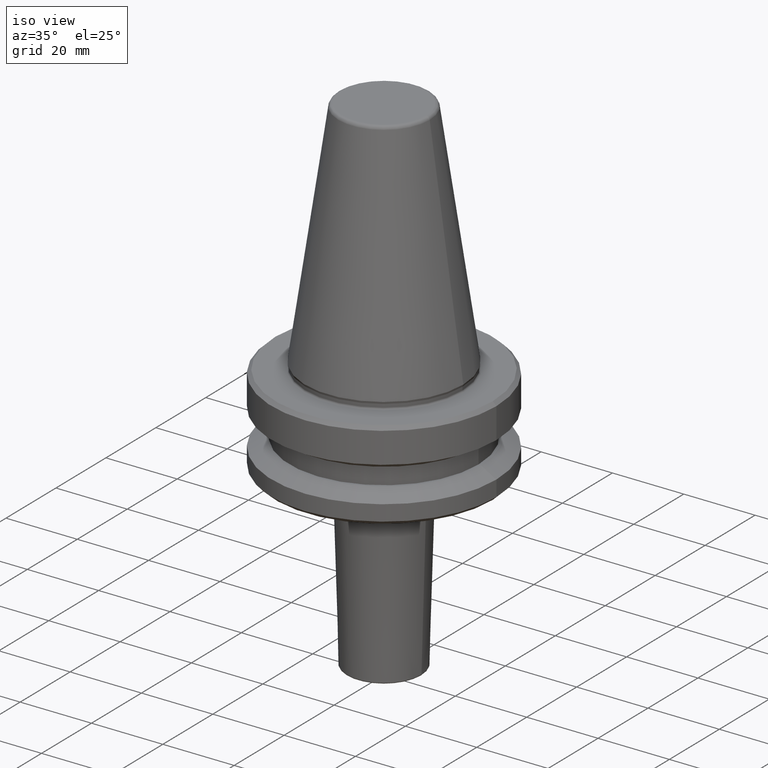
[diagram: clean part render]
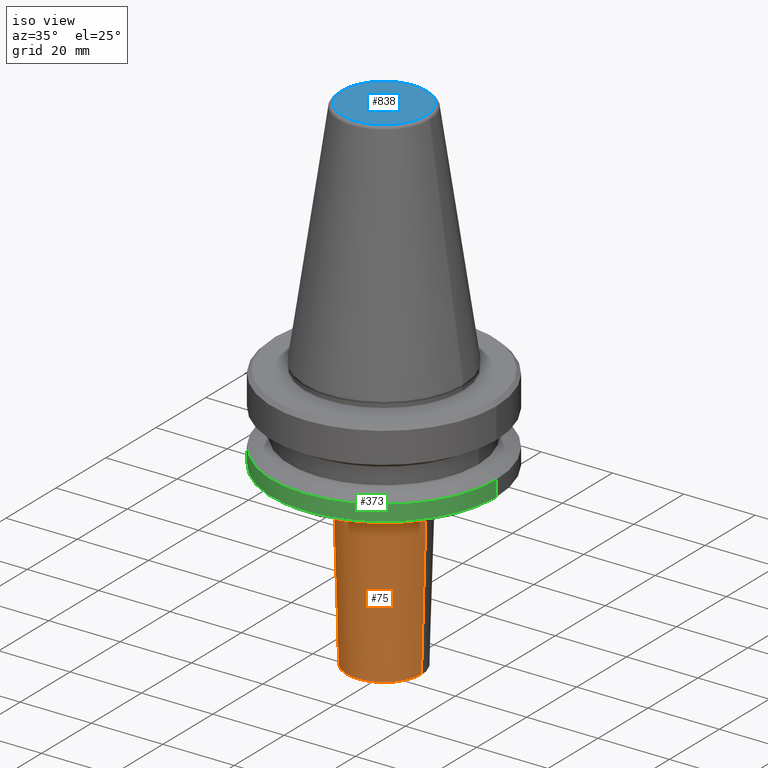
[diagram: same view with three faces highlighted in distinct colors, each labeled with its STEP entity id]
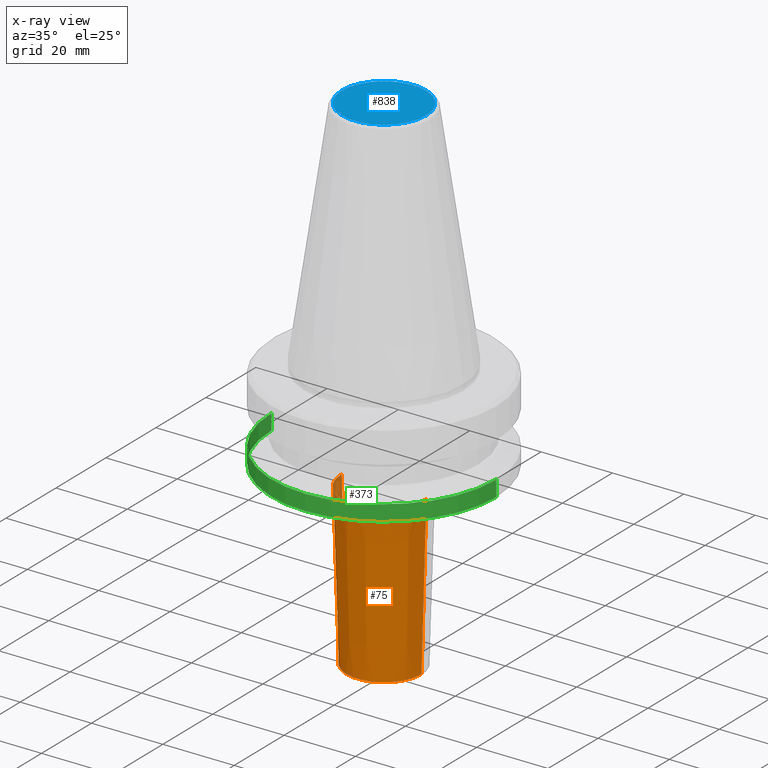
[diagram: x-ray of the same camera — body ghosted, the three highlighted faces saturated]
A machine part, iso view with three faces highlighted in distinct colors.
The next image is the same camera in x-ray (body ghosted, the three faces saturated) — at least one of them is partly hidden behind the body in this view.
Their STEP definitions:

[orange] entity #75 — the highlighted conical surface has half-angle 1.718 deg.
#2 = VERTEX_POINT ( 'NONE', #9 ) ;
#9 = CARTESIAN_POINT ( 'NONE',  ( -10.51455020236339500, 1.287661024979848700E-015, -141.9149932545611300 ) ) ;
#10 = FACE_OUTER_BOUND ( 'NONE', #734, .T. ) ;
#16 = LINE ( 'NONE', #767, #639 ) ;
#22 = DIRECTION ( 'NONE',  ( -0.0000000000000000000, -0.0000000000000000000, 1.000000000000000000 ) ) ;
#46 = AXIS2_PLACEMENT_3D ( 'NONE', #623, #219, #579 ) ;
#67 = ORIENTED_EDGE ( 'NONE', *, *, #913, .F. ) ;
#72 = CIRCLE ( 'NONE', #778, 11.85449797636584700 ) ;
#75 = ADVANCED_FACE ( 'NONE', ( #10 ), #396, .T. ) ;
#79 = DIRECTION ( 'NONE',  ( -0.0000000000000000000, -0.0000000000000000000, 1.000000000000000000 ) ) ;
#143 = DIRECTION ( 'NONE',  ( -0.02998650910567107400, 3.672288239386304100E-018, 0.9995503035223666200 ) ) ;
#219 = DIRECTION ( 'NONE',  ( -0.0000000000000000000, -0.0000000000000000000, 1.000000000000000000 ) ) ;
#252 = AXIS2_PLACEMENT_3D ( 'NONE', #946, #79, #700 ) ;
#295 = EDGE_CURVE ( 'NONE', #723, #410, #504, .T. ) ;
#313 = EDGE_CURVE ( 'NONE', #865, #410, #72, .T. ) ;
#396 = CONICAL_SURFACE ( 'NONE', #252, 11.85449797636584700, 0.02999100485687798000 ) ;
#410 = VERTEX_POINT ( 'NONE', #834 ) ;
#459 = CARTESIAN_POINT ( 'NONE',  ( 11.85449797636584700, 0.0000000000000000000, -97.25006745447970500 ) ) ;
#470 = ORIENTED_EDGE ( 'NONE', *, *, #313, .F. ) ;
#504 = LINE ( 'NONE', #459, #724 ) ;
#506 = CARTESIAN_POINT ( 'NONE',  ( 0.0000000000000000000, 0.0000000000000000000, -97.25006745447970500 ) ) ;
#559 = EDGE_CURVE ( 'NONE', #2, #723, #901, .T. ) ;
#579 = DIRECTION ( 'NONE',  ( 1.000000000000000000, 0.0000000000000000000, 0.0000000000000000000 ) ) ;
#584 = DIRECTION ( 'NONE',  ( 1.000000000000000000, 0.0000000000000000000, 0.0000000000000000000 ) ) ;
#599 = CARTESIAN_POINT ( 'NONE',  ( -11.85449797636584700, 1.757781320174379400E-015, -97.25006745447970500 ) ) ;
#623 = CARTESIAN_POINT ( 'NONE',  ( 0.0000000000000000000, 0.0000000000000000000, -141.9149932545611300 ) ) ;
#639 = VECTOR ( 'NONE', #143, 1000.000000000000100 ) ;
#669 = ORIENTED_EDGE ( 'NONE', *, *, #295, .T. ) ;
#700 = DIRECTION ( 'NONE',  ( 1.000000000000000000, 0.0000000000000000000, 0.0000000000000000000 ) ) ;
#723 = VERTEX_POINT ( 'NONE', #898 ) ;
#724 = VECTOR ( 'NONE', #836, 1000.000000000000100 ) ;
#734 = EDGE_LOOP ( 'NONE', ( #67, #936, #669, #470 ) ) ;
#767 = CARTESIAN_POINT ( 'NONE',  ( -11.85449797636584700, 1.451757300225521200E-015, -97.25006745447970500 ) ) ;
#778 = AXIS2_PLACEMENT_3D ( 'NONE', #506, #22, #584 ) ;
#834 = CARTESIAN_POINT ( 'NONE',  ( 11.85449797636584700, 0.0000000000000000000, -97.25006745447970500 ) ) ;
#836 = DIRECTION ( 'NONE',  ( 0.02998650910567107400, 0.0000000000000000000, 0.9995503035223666200 ) ) ;
#865 = VERTEX_POINT ( 'NONE', #599 ) ;
#898 = CARTESIAN_POINT ( 'NONE',  ( 10.51455020236339500, 0.0000000000000000000, -141.9149932545611300 ) ) ;
#901 = CIRCLE ( 'NONE', #46, 10.51455020236340100 ) ;
#913 = EDGE_CURVE ( 'NONE', #2, #865, #16, .T. ) ;
#936 = ORIENTED_EDGE ( 'NONE', *, *, #559, .T. ) ;
#946 = CARTESIAN_POINT ( 'NONE',  ( 0.0000000000000000000, 0.0000000000000000000, -97.25006745447970500 ) ) ;

[blue] entity #838 — the highlighted planar face has unit normal (0, 0, -1).
#17 = EDGE_CURVE ( 'NONE', #861, #655, #255, .T. ) ;
#18 = ORIENTED_EDGE ( 'NONE', *, *, #813, .T. ) ;
#66 = CIRCLE ( 'NONE', #401, 11.82266927716813000 ) ;
#198 = PLANE ( 'NONE',  #1052 ) ;
#255 = CIRCLE ( 'NONE', #665, 11.82266927716813000 ) ;
#267 = CARTESIAN_POINT ( 'NONE',  ( 11.82266927716813000, 0.0000000000000000000, -4.440892098500626200E-013 ) ) ;
#272 = DIRECTION ( 'NONE',  ( 1.000000000000000000, 0.0000000000000000000, 0.0000000000000000000 ) ) ;
#281 = CARTESIAN_POINT ( 'NONE',  ( -11.82266927716813000, 1.508450817090336800E-015, -4.440892098500626200E-013 ) ) ;
#349 = DIRECTION ( 'NONE',  ( -0.0000000000000000000, -0.0000000000000000000, 1.000000000000000000 ) ) ;
#401 = AXIS2_PLACEMENT_3D ( 'NONE', #922, #349, #272 ) ;
#445 = DIRECTION ( 'NONE',  ( 0.0000000000000000000, 0.0000000000000000000, -1.000000000000000000 ) ) ;
#472 = DIRECTION ( 'NONE',  ( 1.000000000000000000, 0.0000000000000000000, 0.0000000000000000000 ) ) ;
#609 = CARTESIAN_POINT ( 'NONE',  ( 0.0000000000000000000, 0.0000000000000000000, -4.440892098500626200E-013 ) ) ;
#655 = VERTEX_POINT ( 'NONE', #267 ) ;
#665 = AXIS2_PLACEMENT_3D ( 'NONE', #609, #1050, #472 ) ;
#719 = FACE_OUTER_BOUND ( 'NONE', #903, .T. ) ;
#768 = ORIENTED_EDGE ( 'NONE', *, *, #17, .T. ) ;
#813 = EDGE_CURVE ( 'NONE', #655, #861, #66, .T. ) ;
#838 = ADVANCED_FACE ( 'NONE', ( #719 ), #198, .F. ) ;
#839 = CARTESIAN_POINT ( 'NONE',  ( 0.0000000000000000000, 0.0000000000000000000, -4.440892098500626200E-013 ) ) ;
#861 = VERTEX_POINT ( 'NONE', #281 ) ;
#903 = EDGE_LOOP ( 'NONE', ( #18, #768 ) ) ;
#922 = CARTESIAN_POINT ( 'NONE',  ( 0.0000000000000000000, 0.0000000000000000000, -4.440892098500626200E-013 ) ) ;
#940 = DIRECTION ( 'NONE',  ( -1.000000000000000000, 0.0000000000000000000, -0.0000000000000000000 ) ) ;
#1050 = DIRECTION ( 'NONE',  ( -0.0000000000000000000, -0.0000000000000000000, 1.000000000000000000 ) ) ;
#1052 = AXIS2_PLACEMENT_3D ( 'NONE', #839, #445, #940 ) ;

[green] entity #373 — the highlighted cylindrical surface (partial cylindrical patch) has radius 31.5 mm, axis along (-0, -0, 1).
#3 = DIRECTION ( 'NONE',  ( 1.000000000000000000, 0.0000000000000000000, 0.0000000000000000000 ) ) ;
#6 = FACE_OUTER_BOUND ( 'NONE', #227, .T. ) ;
#19 = ORIENTED_EDGE ( 'NONE', *, *, #765, .T. ) ;
#39 = CARTESIAN_POINT ( 'NONE',  ( 31.50000000000008500, 0.0000000000000000000, -87.00014200631733300 ) ) ;
#156 = VERTEX_POINT ( 'NONE', #601 ) ;
#193 = AXIS2_PLACEMENT_3D ( 'NONE', #1004, #411, #3 ) ;
#205 = EDGE_CURVE ( 'NONE', #1006, #888, #658, .T. ) ;
#227 = EDGE_LOOP ( 'NONE', ( #1055, #331, #19, #890 ) ) ;
#317 = LINE ( 'NONE', #431, #966 ) ;
#331 = ORIENTED_EDGE ( 'NONE', *, *, #929, .T. ) ;
#338 = DIRECTION ( 'NONE',  ( -0.0000000000000000000, -0.0000000000000000000, 1.000000000000000000 ) ) ;
#368 = DIRECTION ( 'NONE',  ( -0.0000000000000000000, -0.0000000000000000000, 1.000000000000000000 ) ) ;
#373 = ADVANCED_FACE ( 'NONE', ( #6 ), #393, .T. ) ;
#384 = AXIS2_PLACEMENT_3D ( 'NONE', #422, #500, #479 ) ;
#393 = CYLINDRICAL_SURFACE ( 'NONE', #193, 31.50000000000008500 ) ;
#411 = DIRECTION ( 'NONE',  ( -0.0000000000000000000, -0.0000000000000000000, 1.000000000000000000 ) ) ;
#414 = EDGE_CURVE ( 'NONE', #156, #1006, #806, .T. ) ;
#422 = CARTESIAN_POINT ( 'NONE',  ( 0.0000000000000000000, 0.0000000000000000000, -87.00014200631733300 ) ) ;
#431 = CARTESIAN_POINT ( 'NONE',  ( 31.50000000000008500, 0.0000000000000000000, 6.357346922996331500 ) ) ;
#479 = DIRECTION ( 'NONE',  ( 1.000000000000000000, 0.0000000000000000000, 0.0000000000000000000 ) ) ;
#500 = DIRECTION ( 'NONE',  ( -0.0000000000000000000, -0.0000000000000000000, 1.000000000000000000 ) ) ;
#574 = VECTOR ( 'NONE', #338, 1000.000000000000000 ) ;
#586 = CARTESIAN_POINT ( 'NONE',  ( 31.50000000000008500, 0.0000000000000000000, -91.40000000000037500 ) ) ;
#601 = CARTESIAN_POINT ( 'NONE',  ( -31.50000000000008500, 3.857637417314172900E-015, -91.40000000000037500 ) ) ;
#630 = DIRECTION ( 'NONE',  ( 1.000000000000000000, 0.0000000000000000000, 0.0000000000000000000 ) ) ;
#640 = DIRECTION ( 'NONE',  ( -0.0000000000000000000, -0.0000000000000000000, 1.000000000000000000 ) ) ;
#658 = CIRCLE ( 'NONE', #384, 31.50000000000008500 ) ;
#710 = CARTESIAN_POINT ( 'NONE',  ( -31.50000000000008500, 3.857637417314172900E-015, -87.00014200631733300 ) ) ;
#731 = AXIS2_PLACEMENT_3D ( 'NONE', #1033, #368, #630 ) ;
#738 = CARTESIAN_POINT ( 'NONE',  ( -31.50000000000008500, 3.857637417314172900E-015, 6.357346922996331500 ) ) ;
#765 = EDGE_CURVE ( 'NONE', #835, #888, #317, .T. ) ;
#806 = LINE ( 'NONE', #738, #574 ) ;
#835 = VERTEX_POINT ( 'NONE', #586 ) ;
#859 = CIRCLE ( 'NONE', #731, 31.50000000000008500 ) ;
#888 = VERTEX_POINT ( 'NONE', #39 ) ;
#890 = ORIENTED_EDGE ( 'NONE', *, *, #205, .F. ) ;
#929 = EDGE_CURVE ( 'NONE', #156, #835, #859, .T. ) ;
#966 = VECTOR ( 'NONE', #640, 1000.000000000000000 ) ;
#1004 = CARTESIAN_POINT ( 'NONE',  ( 0.0000000000000000000, 0.0000000000000000000, 6.357346922996331500 ) ) ;
#1006 = VERTEX_POINT ( 'NONE', #710 ) ;
#1033 = CARTESIAN_POINT ( 'NONE',  ( 0.0000000000000000000, 0.0000000000000000000, -91.40000000000037500 ) ) ;
#1055 = ORIENTED_EDGE ( 'NONE', *, *, #414, .F. ) ;